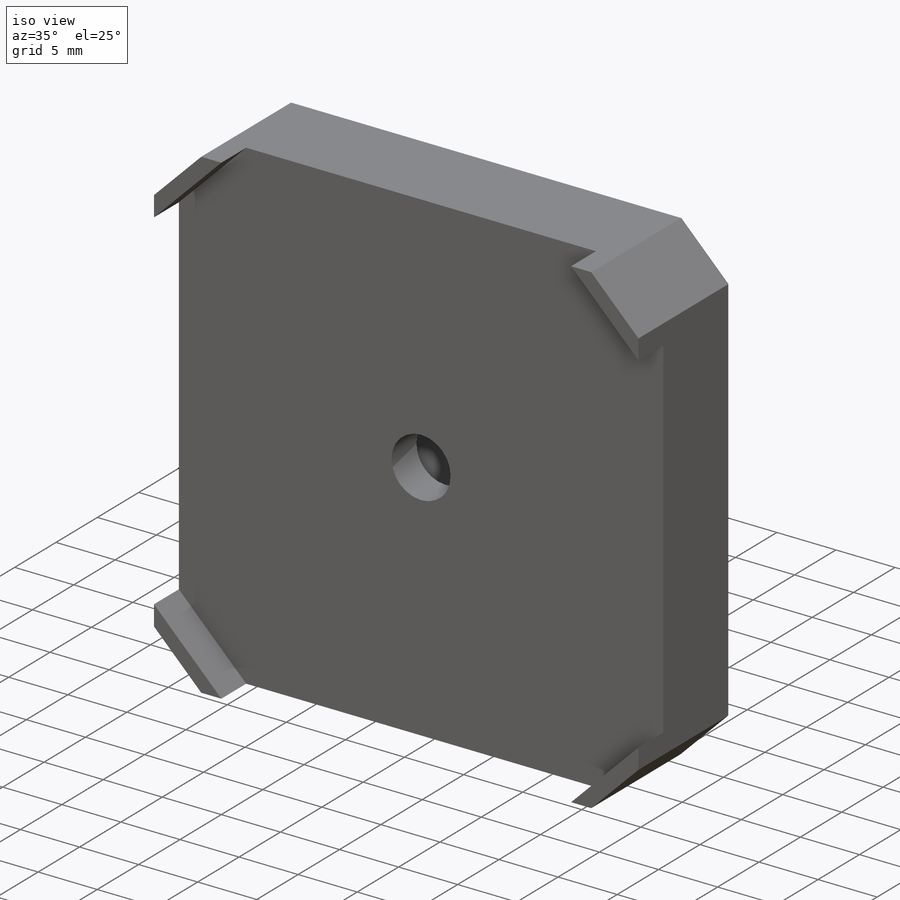
[diagram: iso view]
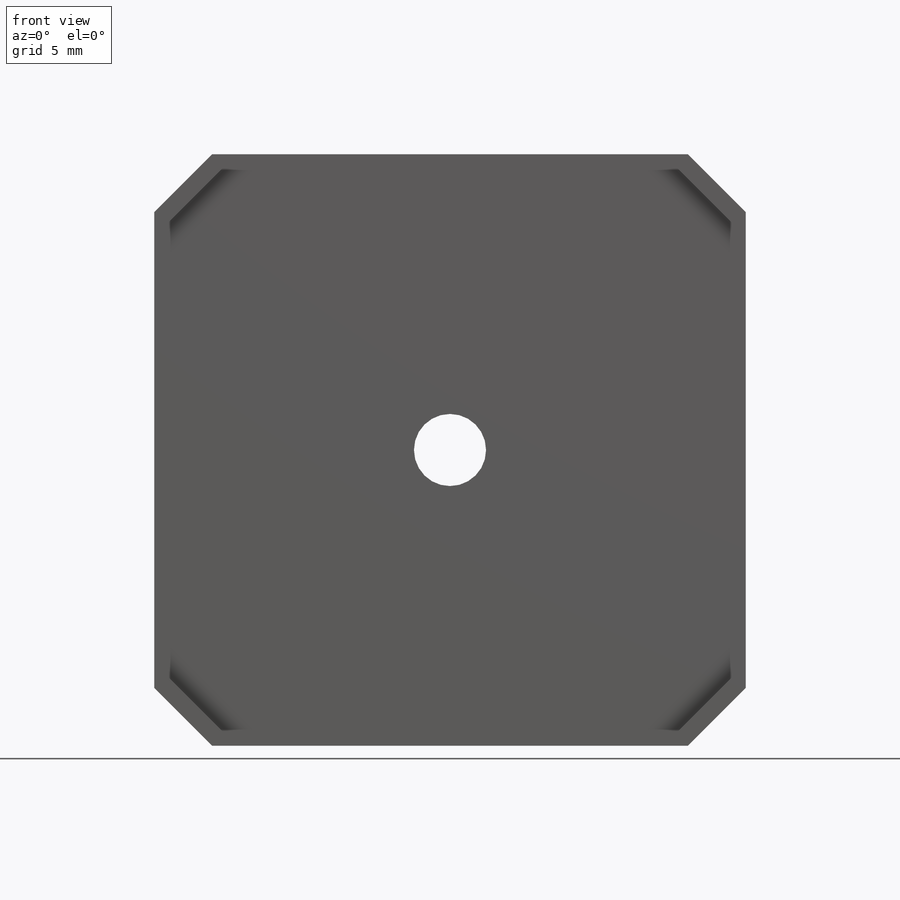
[diagram: front view]
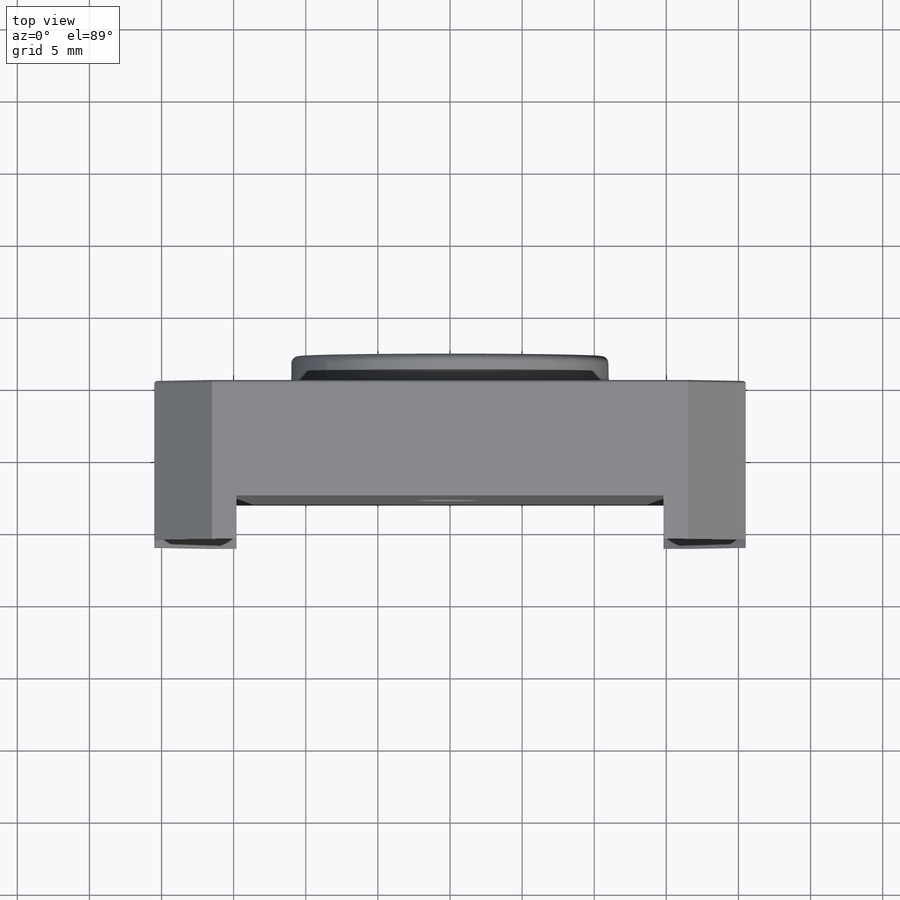
[diagram: top view]
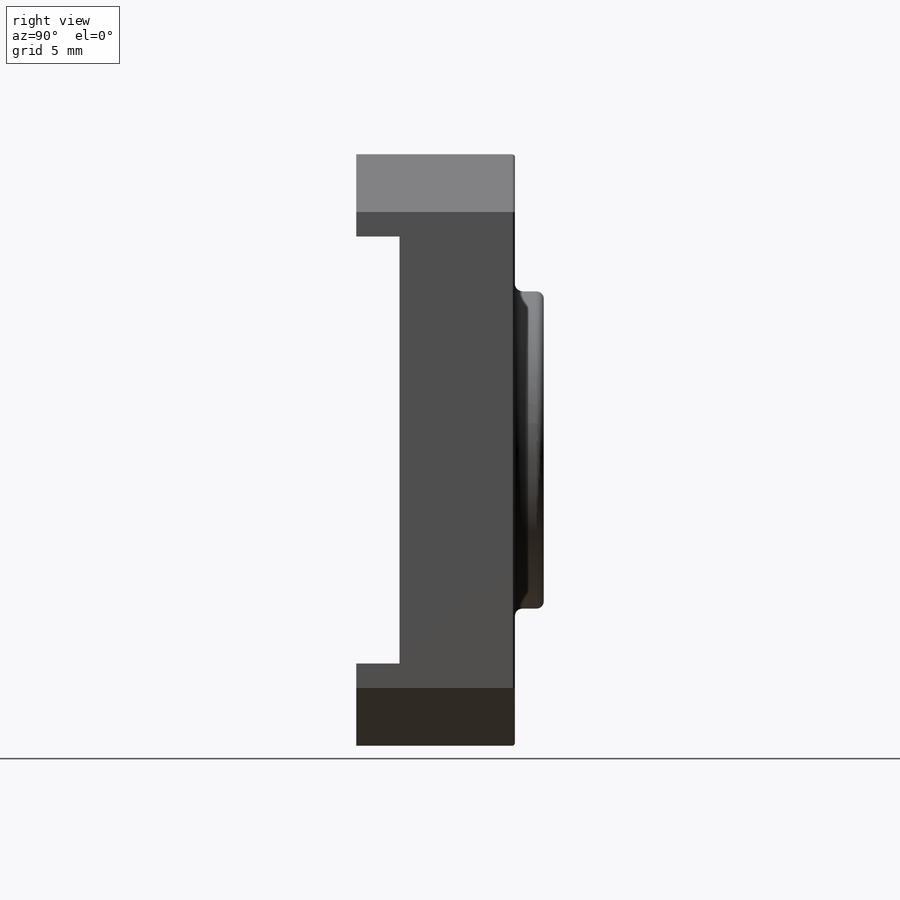
[diagram: right view]
SOLIDWORKS PART (.sldprt)
format: sldprt  version: not decoded by parser v0  size: 310,784 bytes
history: native  units: mm
features: sketch x6, cut_extrude x4, plane x3, fillet x3, extrude x2, material x1 (+9 scaffold rows collapsed)
feature tree (28):
  scaffold x9  (default folders/planes/origin — collapsed)
  material  "Acero aleado"
  plane  "Alzado"
  plane  "Planta"
  plane  "Vista lateral"
  sketch  "Croquis1"  dims[D1=41.0mm D2=41.0mm]
  extrude  "Saliente-Extruir1"  Depth=11mm
  sketch  "Croquis2"  dims[D1=42.3mm D2=42.3mm]
  cut_extrude  "Cortar-Extruir1"  Depth=3mm
  sketch  "Croquis3"  dims[D1=22.0mm]
  extrude  "Saliente-Extruir2"  Depth=2mm
  sketch  "Croquis4"  dims[D1=11.0mm]
  cut_extrude  "Cortar-Extruir2"  Depth=7mm
  sketch  "Croquis5"  dims[D1=5.0mm]
  cut_extrude  "Cortar-Extruir3"  Depth=7mm
  fillet  "Redondeo2"  Radius=0.2mm
  fillet  "Redondeo3"  Radius=0.5mm
  sketch  "Croquis6"  dims[D1=3.0mm D2=15.5mm D3=15.5mm D5=15.5mm D6=15.5mm D4=4.0]
  cut_extrude  "Cortar-Extruir4"  Depth=4.5mm
  fillet  "Redondeo4"  Radius=0.5mm
decode coverage: 15 of 15 modeling features carry decoded parameters
note: suppression state not decoded; provenance and decode notes live in map.json
